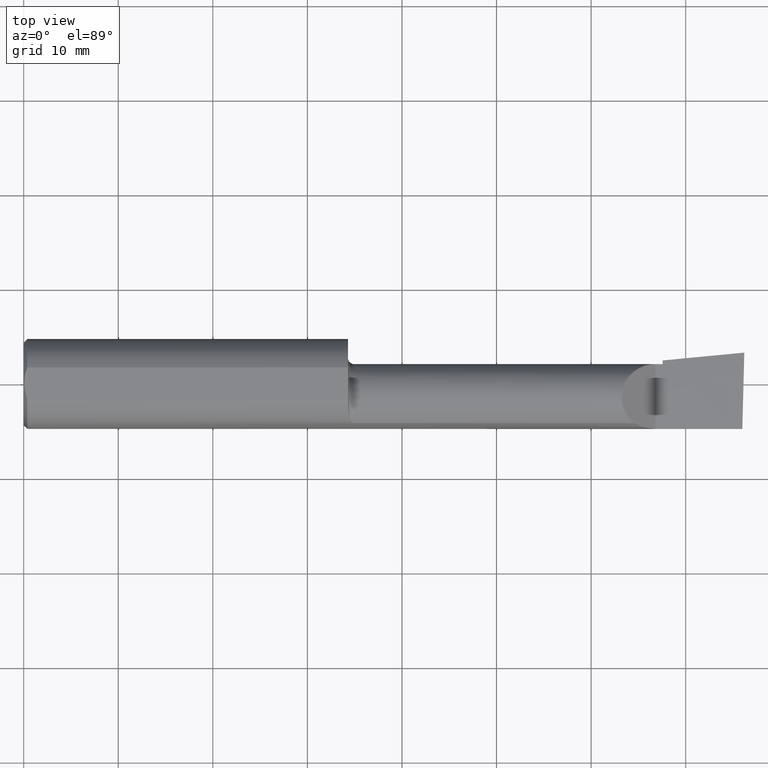
[diagram: clean part render]
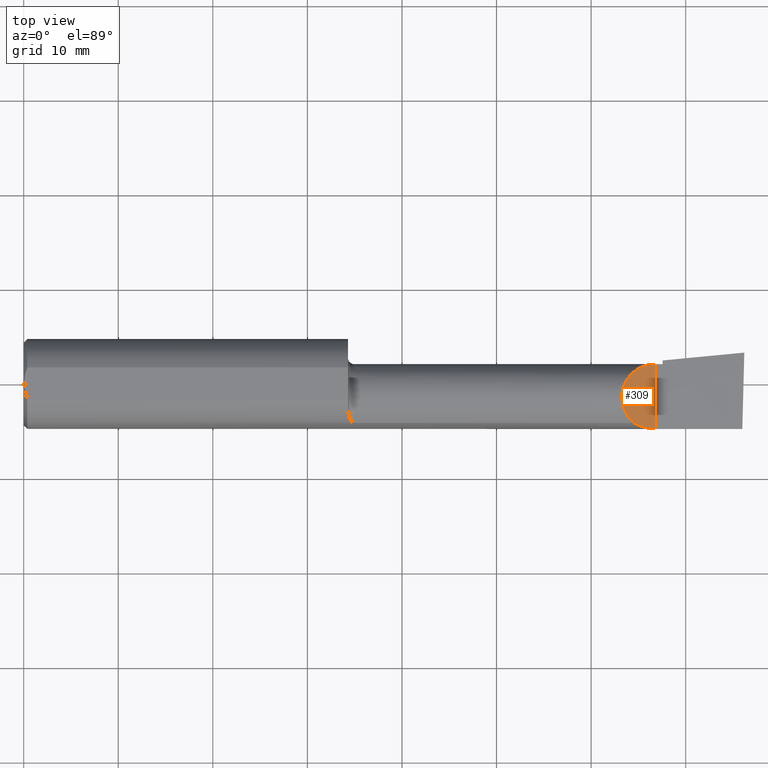
[diagram: same view with one face highlighted and labeled with its STEP entity id]
A machine part, top view. The second image highlights one B-rep face of the part: STEP entity #309.
In plain terms, the highlighted planar face has unit normal (-0.7071, 0, -0.7071).
Its self-contained STEP definition (entity closure, byte-faithful):
#58 = AXIS2_PLACEMENT_3D ( 'NONE', #79, #66, #59 ) ;
#59 = DIRECTION ( 'NONE',  ( -0.7071067811865516806, 0.0000000000000000000, 0.7071067811865434649 ) ) ;
#66 = DIRECTION ( 'NONE',  ( -0.7071067811865434649, 0.0000000000000000000, -0.7071067811865516806 ) ) ;
#79 = CARTESIAN_POINT ( 'NONE',  ( 2.629999999999999893, -0.2500000000000000555, -1.592040838891560883E-17 ) ) ;
#90 = PLANE ( 'NONE',  #58 ) ;
#108 = DIRECTION ( 'NONE',  ( -0.0000000000000000000, 1.000000000000000000, -0.0000000000000000000 ) ) ;
#115 = CARTESIAN_POINT ( 'NONE',  ( 2.538695632261437130, -0.1635956445993032027, 0.09130436773856151489 ) ) ;
#120 = CARTESIAN_POINT ( 'NONE',  ( 2.629999999999999893, -0.2500000000000000555, -1.592040838891560883E-17 ) ) ;
#189 = ORIENTED_EDGE ( 'NONE', *, *, #527, .F. ) ;
#197 = EDGE_CURVE ( 'NONE', #535, #376, #466, .T. ) ;
#227 =( BOUNDED_CURVE ( )  B_SPLINE_CURVE ( 3, ( #566, #555, #568, #115 ),
 .UNSPECIFIED., .F., .T. ) 
 B_SPLINE_CURVE_WITH_KNOTS ( ( 4, 4 ),
 ( 4.712388980384689674, 5.221437360734123345 ),
 .UNSPECIFIED. ) 
 CURVE ( )  GEOMETRIC_REPRESENTATION_ITEM ( )  RATIONAL_B_SPLINE_CURVE ( ( 1.000000000000000000, 0.9785221379938657815, 0.9785221379938657815, 1.000000000000000000 ) ) 
 REPRESENTATION_ITEM ( '' )  );
#234 = VECTOR ( 'NONE', #108, 39.37007874015748143 ) ;
#290 = ORIENTED_EDGE ( 'NONE', *, *, #383, .T. ) ;
#309 = ADVANCED_FACE ( 'NONE', ( #523 ), #90, .F. ) ;
#331 = CARTESIAN_POINT ( 'NONE',  ( 2.475085956200449022, 0.08265000000000004288, 0.1549140437995496777 ) ) ;
#367 = EDGE_LOOP ( 'NONE', ( #493, #189, #290 ) ) ;
#376 = VERTEX_POINT ( 'NONE', #438 ) ;
#383 = EDGE_CURVE ( 'NONE', #408, #376, #587, .T. ) ;
#408 = VERTEX_POINT ( 'NONE', #431 ) ;
#431 = CARTESIAN_POINT ( 'NONE',  ( 2.629999999999999893, -0.1873499999999999888, -1.592040838891560883E-17 ) ) ;
#438 = CARTESIAN_POINT ( 'NONE',  ( 2.629999999999999893, 0.08264999999999983471, -1.592040838891560883E-17 ) ) ;
#463 = CARTESIAN_POINT ( 'NONE',  ( 2.629999999999999893, 0.08264999999999983471, -1.592040838891560883E-17 ) ) ;
#466 =( BOUNDED_CURVE ( )  B_SPLINE_CURVE ( 3, ( #549, #539, #331, #463 ),
 .UNSPECIFIED., .F., .T. ) 
 B_SPLINE_CURVE_WITH_KNOTS ( ( 4, 4 ),
 ( 5.422530673488456188, 7.853981633974482790 ),
 .UNSPECIFIED. ) 
 CURVE ( )  GEOMETRIC_REPRESENTATION_ITEM ( )  RATIONAL_B_SPLINE_CURVE ( ( 1.000000000000000000, 0.5651045289226855894, 0.5651045289226855894, 1.000000000000000000 ) ) 
 REPRESENTATION_ITEM ( '' )  );
#493 = ORIENTED_EDGE ( 'NONE', *, *, #197, .F. ) ;
#523 = FACE_OUTER_BOUND ( 'NONE', #367, .T. ) ;
#527 = EDGE_CURVE ( 'NONE', #408, #535, #227, .T. ) ;
#535 = VERTEX_POINT ( 'NONE', #583 ) ;
#539 = CARTESIAN_POINT ( 'NONE',  ( 2.421229036482943187, -0.06260079402492466083, 0.2087709635170540146 ) ) ;
#549 = CARTESIAN_POINT ( 'NONE',  ( 2.538695632261437130, -0.1635956445993032027, 0.09130436773856151489 ) ) ;
#555 = CARTESIAN_POINT ( 'NONE',  ( 2.597861799102314073, -0.1873500000000000165, 0.03213820089768498756 ) ) ;
#566 = CARTESIAN_POINT ( 'NONE',  ( 2.629999999999999893, -0.1873499999999999888, -1.592040838891560883E-17 ) ) ;
#568 = CARTESIAN_POINT ( 'NONE',  ( 2.566758987970637840, -0.1792580844883771840, 0.06324101202936116550 ) ) ;
#583 = CARTESIAN_POINT ( 'NONE',  ( 2.538695632261437130, -0.1635956445993032027, 0.09130436773856151489 ) ) ;
#587 = LINE ( 'NONE', #120, #234 ) ;